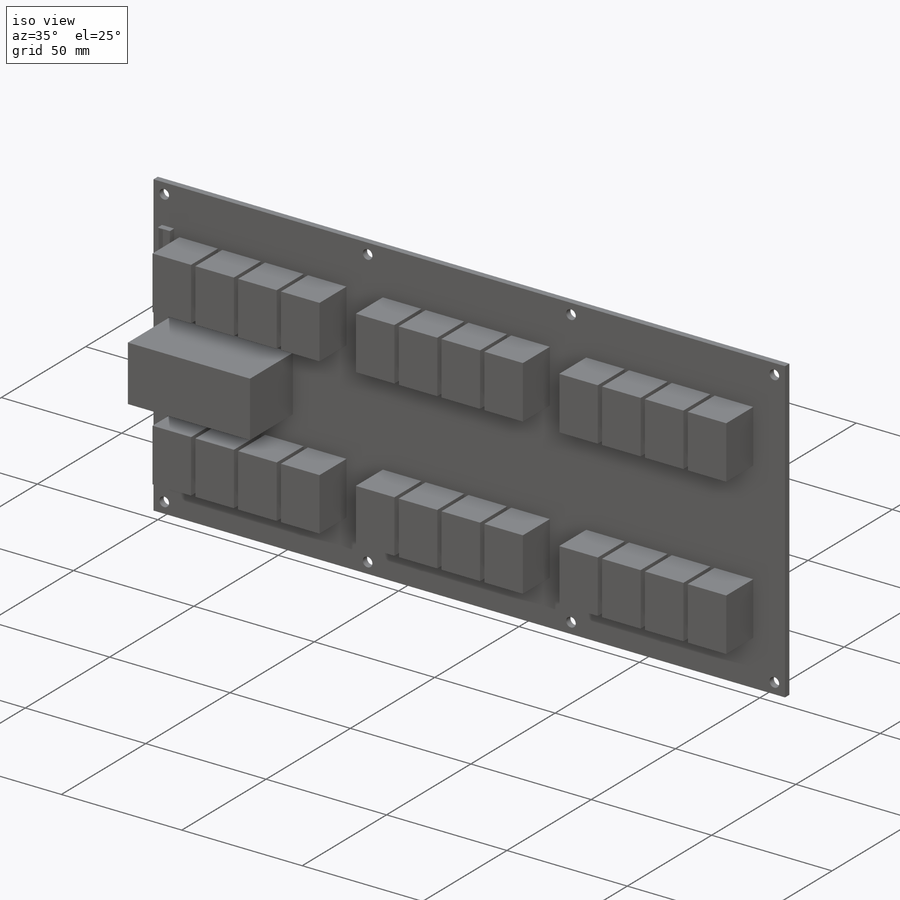
[diagram: iso view]
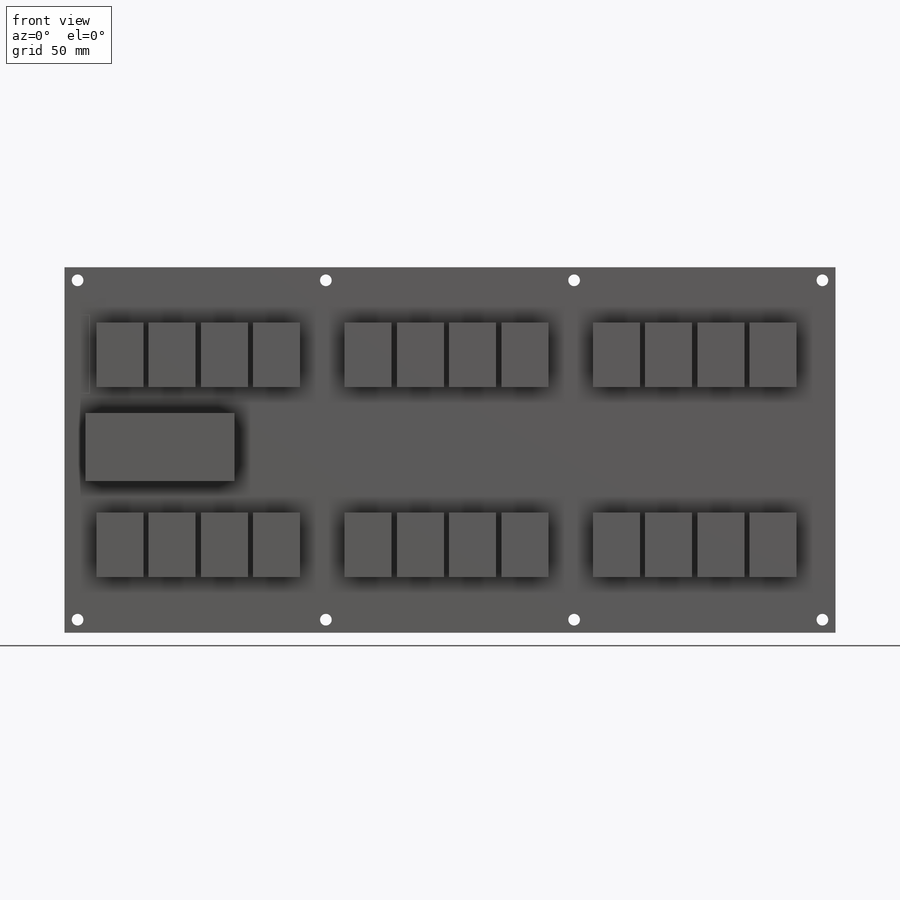
[diagram: front view]
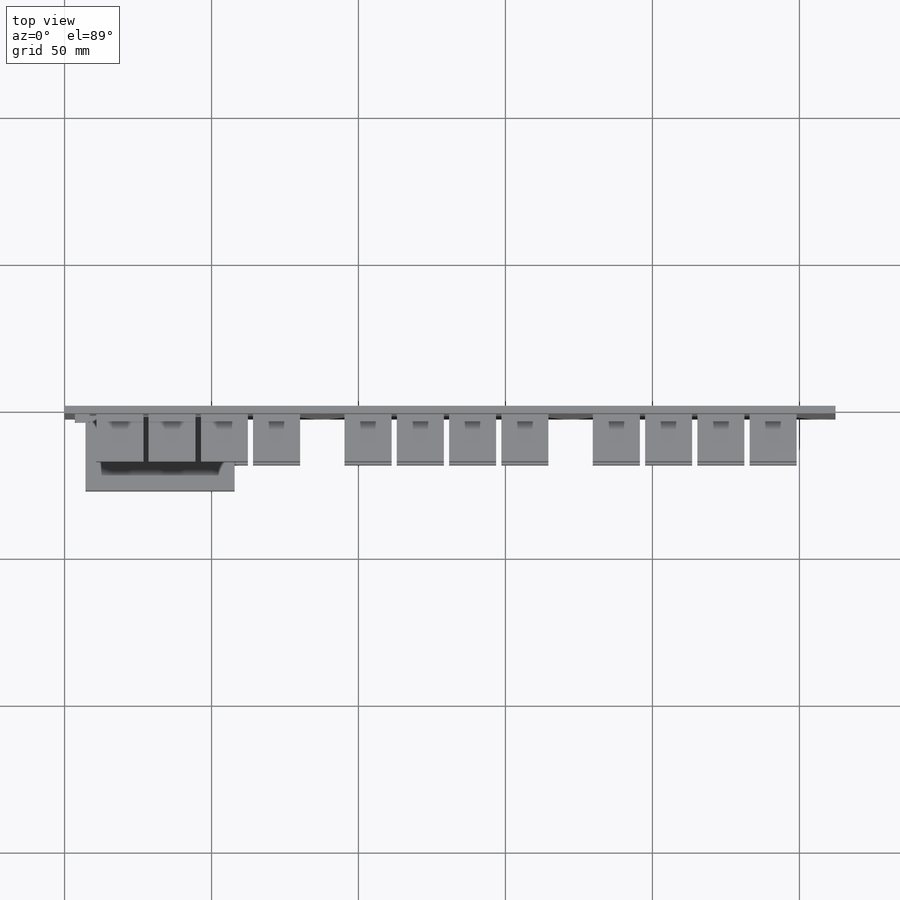
[diagram: top view]
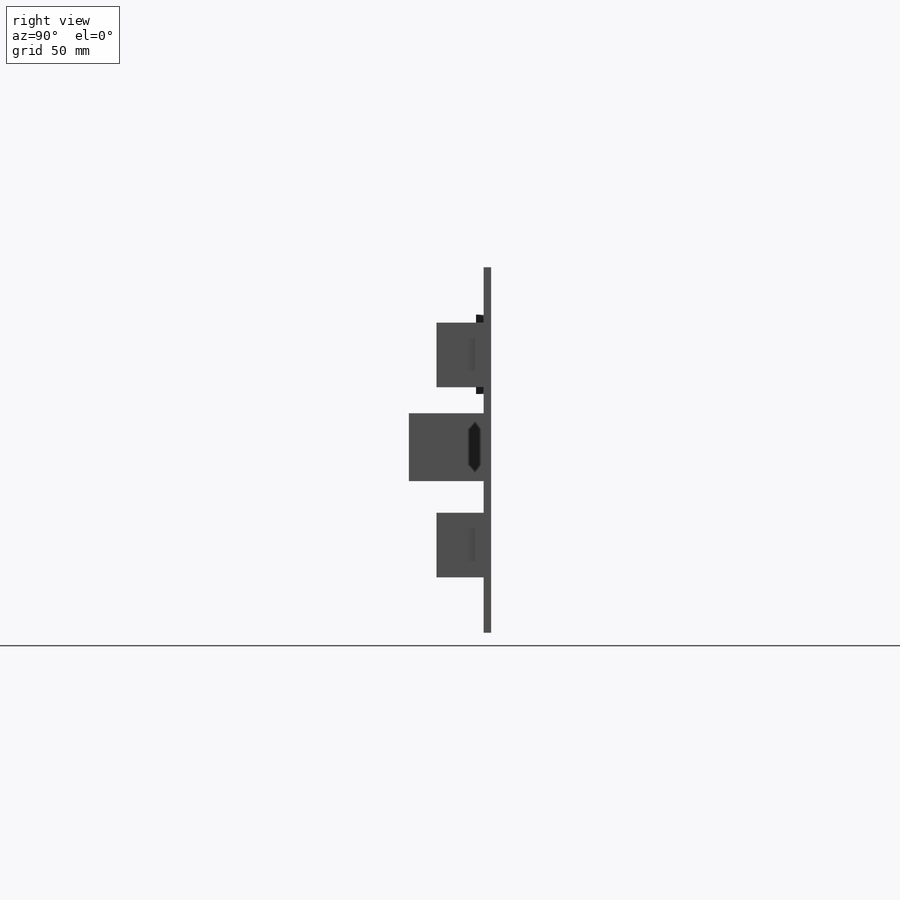
[diagram: right view]
SOLIDWORKS PART (.sldprt)
format: sldprt  version: not decoded by parser v0  size: 361,984 bytes
history: native  units: mm
features: sketch x7, extrude x4, material x1, hole x1, cut_extrude x1, pattern_linear x1, plane x1, mirror x1 (+12 scaffold rows collapsed)
feature tree (29):
  scaffold x12  (default folders/planes/origin — collapsed)
  material  "Material <not specified>"
  sketch  "Sketch1"  dims[D1=262.255mm D2=124.333mm]
  extrude  "Boss-Extrude1"  Depth=2.54mm
  hole  "5/32 (0.15625) Diameter Hole1"  Diameter=3.96875mm Depth=2.54mm
  sketch  "Sketch4"  dims[D1=4.445mm D2=4.445mm D3=4.445mm D4=84.455mm D5=84.455mm D6=84.455mm D7=84.455mm]
  sketch  "Sketch3"  dims[hole-wizard template sketch: 60 standard entries collapsed; hole parameters kept: c18.Thru Hole Depth=2.54mm]
  sketch  "Sketch12"  dims[D1=26.924mm D2=5.08mm]
  extrude  "Boss-Extrude2"  Depth=2.54mm
  sketch  "Sketch13"
  extrude  "Boss-Extrude3"  Depth=25.4mm
  sketch  "Sketch14"
  cut_extrude  "Cut-Extrude1"  Depth=25.4mm
  sketch  "Sketch16"  dims[D1=21.9964mm D2=16.002mm D3=21.9964mm D4=16.002mm D5=21.9964mm D6=16.002mm D7=21.9964mm D8=16.002mm D9=6.35mm D10=6.35mm D11=6.35mm D12=6.35mm]
  extrude  "Boss-Extrude5"  Depth=16.002mm
  pattern_linear  "LPattern1"  Count1=4 Count2=1 Spacing1=17.78mm Spacing2=2.54mm
  plane  "Plane1"
  mirror  "Mirror1"
decode coverage: 12 of 15 modeling features carry decoded parameters
note: ~ marks probable driven/reference dimensions
note: suppression state not decoded; provenance and decode notes live in map.json
